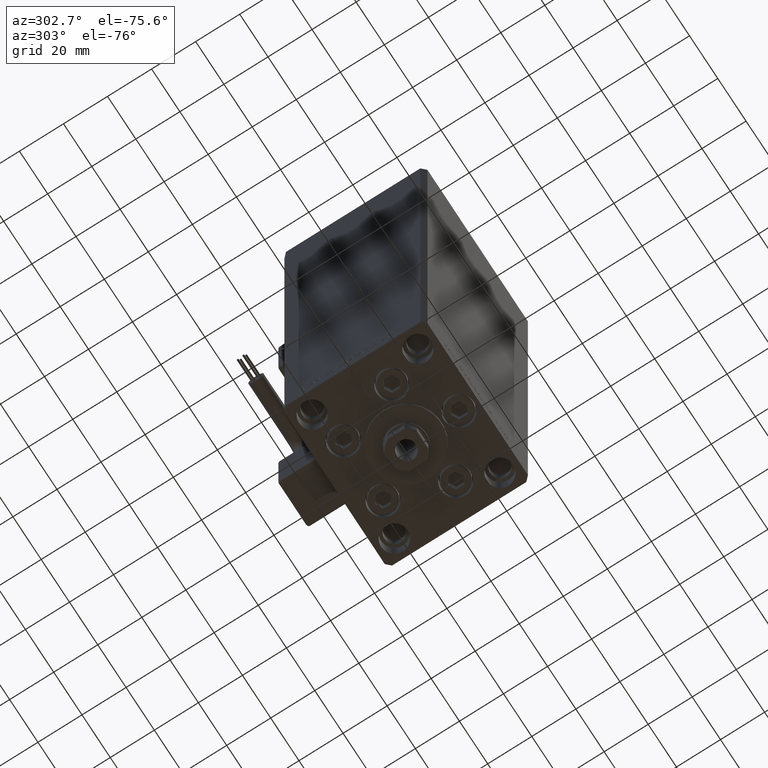
[diagram: clean part render]
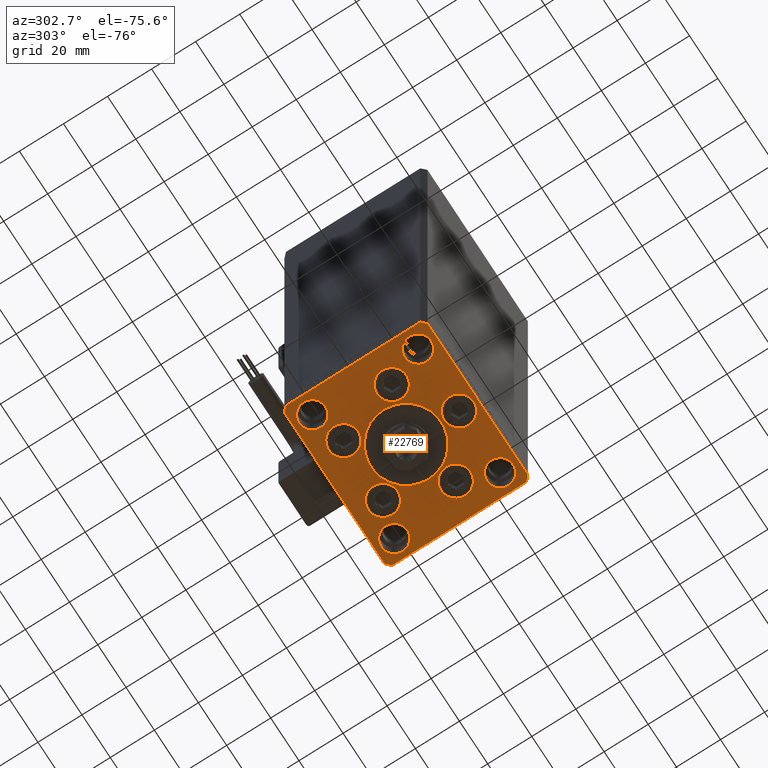
[diagram: same view with one face highlighted and labeled with its STEP entity id]
A machine part, auxiliary view. The second image highlights one B-rep face of the part: STEP entity #22769.
In plain terms, the highlighted planar face has unit normal (0, 0, -1).
Its self-contained STEP definition (entity closure, byte-faithful):
#14 = AXIS2_PLACEMENT_3D ( 'NONE', #28162, #40494, #8681 ) ;
#486 = CARTESIAN_POINT ( 'NONE',  ( -35.50000000000000711, 32.49999999999997868, 0.000000000000000000 ) ) ;
#595 = EDGE_CURVE ( 'NONE', #36400, #5822, #8258, .T. ) ;
#996 = CARTESIAN_POINT ( 'NONE',  ( 35.50000000000001421, -32.49999999999992184, 0.000000000000000000 ) ) ;
#1094 = DIRECTION ( 'NONE',  ( 1.000000000000000000, 0.000000000000000000, 0.000000000000000000 ) ) ;
#1117 = CIRCLE ( 'NONE', #43922, 6.750000000001552536 ) ;
#1350 = CARTESIAN_POINT ( 'NONE',  ( -22.62741699796953299, -8.000000000000000000, 0.000000000000000000 ) ) ;
#1377 = EDGE_LOOP ( 'NONE', ( #46685, #33184 ) ) ;
#1691 = ORIENTED_EDGE ( 'NONE', *, *, #20599, .T. ) ;
#1692 = CIRCLE ( 'NONE', #14, 6.000000000000001776 ) ;
#2246 = DIRECTION ( 'NONE',  ( 1.000000000000000000, 0.000000000000000000, 0.000000000000000000 ) ) ;
#2519 = VERTEX_POINT ( 'NONE', #40950 ) ;
#2531 = VERTEX_POINT ( 'NONE', #43015 ) ;
#2595 = ORIENTED_EDGE ( 'NONE', *, *, #49307, .F. ) ;
#2691 = CIRCLE ( 'NONE', #44649, 6.750000000000009770 ) ;
#2895 = EDGE_CURVE ( 'NONE', #34607, #11004, #32704, .T. ) ;
#3568 = DIRECTION ( 'NONE',  ( 0.000000000000000000, 0.000000000000000000, 1.000000000000000000 ) ) ;
#3669 = CARTESIAN_POINT ( 'NONE',  ( -22.62741699796953299, -8.000000000000000000, 0.000000000000000000 ) ) ;
#3739 = CIRCLE ( 'NONE', #16339, 6.750000000000000000 ) ;
#3889 = ORIENTED_EDGE ( 'NONE', *, *, #48195, .F. ) ;
#4486 = EDGE_CURVE ( 'NONE', #34597, #2519, #1692, .T. ) ;
#4515 = DIRECTION ( 'NONE',  ( 0.000000000000000000, 0.000000000000000000, 1.000000000000000000 ) ) ;
#5458 = CARTESIAN_POINT ( 'NONE',  ( -20.74106857963324302, 19.50000000000000000, 0.000000000000000000 ) ) ;
#5578 = DIRECTION ( 'NONE',  ( 1.000000000000000000, 0.000000000000000000, 0.000000000000000000 ) ) ;
#5822 = VERTEX_POINT ( 'NONE', #26227 ) ;
#6028 = DIRECTION ( 'NONE',  ( 0.000000000000000000, 0.000000000000000000, 1.000000000000000000 ) ) ;
#6093 = CIRCLE ( 'NONE', #29601, 6.000000000000001776 ) ;
#6151 = DIRECTION ( 'NONE',  ( 1.000000000000000000, 0.000000000000000000, 0.000000000000000000 ) ) ;
#6156 = ORIENTED_EDGE ( 'NONE', *, *, #595, .F. ) ;
#6289 = DIRECTION ( 'NONE',  ( 1.000000000000000000, 0.000000000000000000, 0.000000000000000000 ) ) ;
#6846 = VERTEX_POINT ( 'NONE', #11284 ) ;
#7056 = ORIENTED_EDGE ( 'NONE', *, *, #27213, .F. ) ;
#7059 = VERTEX_POINT ( 'NONE', #46445 ) ;
#7360 = DIRECTION ( 'NONE',  ( 1.000000000000000000, 0.000000000000000000, 0.000000000000000000 ) ) ;
#7904 = EDGE_CURVE ( 'NONE', #41837, #30245, #19239, .T. ) ;
#7935 = CARTESIAN_POINT ( 'NONE',  ( 29.00000000000000000, 24.00000000000000355, 0.000000000000000000 ) ) ;
#8258 = CIRCLE ( 'NONE', #28423, 6.749999999999999112 ) ;
#8498 = CARTESIAN_POINT ( 'NONE',  ( 0.000000000000000000, -24.00000000000001066, 0.000000000000000000 ) ) ;
#8649 = CIRCLE ( 'NONE', #21259, 5.999999999999998224 ) ;
#8681 = DIRECTION ( 'NONE',  ( 1.000000000000000000, 0.000000000000000000, 0.000000000000000000 ) ) ;
#8711 = DIRECTION ( 'NONE',  ( 1.000000000000000000, 0.000000000000000000, 0.000000000000000000 ) ) ;
#9003 = CARTESIAN_POINT ( 'NONE',  ( -13.99106857963324124, 19.50000000000000000, 0.000000000000000000 ) ) ;
#9019 = CIRCLE ( 'NONE', #38396, 6.000000000000001776 ) ;
#9165 = DIRECTION ( 'NONE',  ( -0.7071067811865524577, -0.7071067811865426878, 0.000000000000000000 ) ) ;
#9219 = CIRCLE ( 'NONE', #23493, 6.749999999999997335 ) ;
#9330 = FACE_OUTER_BOUND ( 'NONE', #43827, .T. ) ;
#9437 = CARTESIAN_POINT ( 'NONE',  ( -7.241068579633241242, 19.50000000000000000, 0.000000000000000000 ) ) ;
#9586 = DIRECTION ( 'NONE',  ( 1.000000000000000000, 0.000000000000000000, 0.000000000000000000 ) ) ;
#9828 = AXIS2_PLACEMENT_3D ( 'NONE', #10005, #50715, #34462 ) ;
#9878 = CARTESIAN_POINT ( 'NONE',  ( 37.50000000000000711, -30.49999999999992895, 0.000000000000000000 ) ) ;
#10005 = CARTESIAN_POINT ( 'NONE',  ( -29.00000000000000000, -23.99999999999999645, 0.000000000000000000 ) ) ;
#10339 = ORIENTED_EDGE ( 'NONE', *, *, #19787, .F. ) ;
#10352 = ORIENTED_EDGE ( 'NONE', *, *, #12501, .F. ) ;
#10353 = VERTEX_POINT ( 'NONE', #486 ) ;
#10628 = CARTESIAN_POINT ( 'NONE',  ( 15.87741699796952410, -8.000000000000000000, 0.000000000000000000 ) ) ;
#10654 = DIRECTION ( 'NONE',  ( 1.000000000000000000, 0.000000000000000000, 0.000000000000000000 ) ) ;
#10742 = CIRCLE ( 'NONE', #40126, 6.000000000000001776 ) ;
#10786 = ORIENTED_EDGE ( 'NONE', *, *, #24116, .T. ) ;
#10999 = EDGE_LOOP ( 'NONE', ( #6156, #24991 ) ) ;
#11004 = VERTEX_POINT ( 'NONE', #42838 ) ;
#11022 = AXIS2_PLACEMENT_3D ( 'NONE', #39307, #3568, #47446 ) ;
#11284 = CARTESIAN_POINT ( 'NONE',  ( 23.00000000000000000, 24.00000000000000355, 0.000000000000000000 ) ) ;
#11535 = CIRCLE ( 'NONE', #9828, 6.000000000000001776 ) ;
#11778 = CARTESIAN_POINT ( 'NONE',  ( 16.00000000000000355, -4.979459025271462852E-15, 0.000000000000000000 ) ) ;
#12261 = CARTESIAN_POINT ( 'NONE',  ( -37.50000000000001421, 30.50000000000000000, 0.000000000000000000 ) ) ;
#12422 = EDGE_LOOP ( 'NONE', ( #42690, #10339 ) ) ;
#12501 = EDGE_CURVE ( 'NONE', #29444, #42003, #9219, .T. ) ;
#12957 = CARTESIAN_POINT ( 'NONE',  ( 13.99106857963324124, 19.50000000000000000, 0.000000000000000000 ) ) ;
#13016 = ORIENTED_EDGE ( 'NONE', *, *, #15772, .F. ) ;
#13181 = ORIENTED_EDGE ( 'NONE', *, *, #7904, .T. ) ;
#13364 = LINE ( 'NONE', #21002, #44752 ) ;
#13506 = LINE ( 'NONE', #40860, #48229 ) ;
#13532 = PLANE ( 'NONE',  #37989 ) ;
#13890 = AXIS2_PLACEMENT_3D ( 'NONE', #37279, #20984, #44645 ) ;
#13912 = CARTESIAN_POINT ( 'NONE',  ( 0.000000000000000000, -6.938893903907228378E-15, 0.000000000000000000 ) ) ;
#14256 = CARTESIAN_POINT ( 'NONE',  ( -16.00000000000000355, -6.938893903907228378E-15, 0.000000000000000000 ) ) ;
#14378 = CARTESIAN_POINT ( 'NONE',  ( -13.99106857963324124, 19.50000000000000000, 0.000000000000000000 ) ) ;
#14400 = LINE ( 'NONE', #46970, #26587 ) ;
#14434 = AXIS2_PLACEMENT_3D ( 'NONE', #14378, #50360, #50870 ) ;
#14939 = DIRECTION ( 'NONE',  ( -1.000000000000000000, -1.954618001100627573E-16, 0.000000000000000000 ) ) ;
#15437 = DIRECTION ( 'NONE',  ( -0.7071067811865524577, 0.7071067811865426878, 0.000000000000000000 ) ) ;
#15478 = VERTEX_POINT ( 'NONE', #11778 ) ;
#15772 = EDGE_CURVE ( 'NONE', #2519, #34597, #22812, .T. ) ;
#15880 = CARTESIAN_POINT ( 'NONE',  ( -37.50000000000000000, -30.50000000000004263, 0.000000000000000000 ) ) ;
#16339 = AXIS2_PLACEMENT_3D ( 'NONE', #9003, #32942, #45270 ) ;
#16491 = CIRCLE ( 'NONE', #46726, 6.750000000001552536 ) ;
#16603 = AXIS2_PLACEMENT_3D ( 'NONE', #13912, #6028, #6289 ) ;
#16752 = AXIS2_PLACEMENT_3D ( 'NONE', #22453, #42164, #6151 ) ;
#17222 = DIRECTION ( 'NONE',  ( -0.000000000000000000, 0.000000000000000000, 1.000000000000000000 ) ) ;
#17393 = EDGE_CURVE ( 'NONE', #38232, #40409, #51318, .T. ) ;
#17465 = EDGE_CURVE ( 'NONE', #11004, #34607, #2691, .T. ) ;
#17478 = FACE_BOUND ( 'NONE', #20715, .T. ) ;
#17610 = DIRECTION ( 'NONE',  ( 0.7071067811865463515, 0.7071067811865487940, 0.000000000000000000 ) ) ;
#17735 = FACE_BOUND ( 'NONE', #47521, .T. ) ;
#18122 = EDGE_LOOP ( 'NONE', ( #10352, #26382 ) ) ;
#19001 = CIRCLE ( 'NONE', #35790, 6.749999999999999112 ) ;
#19239 = LINE ( 'NONE', #34505, #51108 ) ;
#19260 = ORIENTED_EDGE ( 'NONE', *, *, #45308, .F. ) ;
#19455 = DIRECTION ( 'NONE',  ( 0.000000000000000000, 0.000000000000000000, 1.000000000000000000 ) ) ;
#19501 = DIRECTION ( 'NONE',  ( 0.000000000000000000, 0.000000000000000000, 1.000000000000000000 ) ) ;
#19787 = EDGE_CURVE ( 'NONE', #50903, #35706, #8649, .T. ) ;
#20139 = EDGE_CURVE ( 'NONE', #7059, #23876, #1117, .T. ) ;
#20211 = DIRECTION ( 'NONE',  ( 0.000000000000000000, 0.000000000000000000, 1.000000000000000000 ) ) ;
#20395 = LINE ( 'NONE', #12261, #39225 ) ;
#20435 = EDGE_LOOP ( 'NONE', ( #38803, #7056 ) ) ;
#20599 = EDGE_CURVE ( 'NONE', #2531, #10353, #43578, .T. ) ;
#20715 = EDGE_LOOP ( 'NONE', ( #30855, #19260 ) ) ;
#20933 = VERTEX_POINT ( 'NONE', #50855 ) ;
#20984 = DIRECTION ( 'NONE',  ( 0.000000000000000000, 0.000000000000000000, 1.000000000000000000 ) ) ;
#21002 = CARTESIAN_POINT ( 'NONE',  ( -35.50000000000000711, 32.49999999999997868, 0.000000000000000000 ) ) ;
#21056 = CARTESIAN_POINT ( 'NONE',  ( -6.750000000001552536, -24.00000000000001066, 0.000000000000000000 ) ) ;
#21259 = AXIS2_PLACEMENT_3D ( 'NONE', #25091, #37935, #49741 ) ;
#21418 = FACE_BOUND ( 'NONE', #20435, .T. ) ;
#21844 = EDGE_LOOP ( 'NONE', ( #23545, #26061 ) ) ;
#22082 = VECTOR ( 'NONE', #14939, 1000.000000000000000 ) ;
#22289 = CARTESIAN_POINT ( 'NONE',  ( 37.50000000000000711, 30.50000000000001421, 0.000000000000000000 ) ) ;
#22453 = CARTESIAN_POINT ( 'NONE',  ( 22.62741699796953299, -8.000000000000000000, 0.000000000000000000 ) ) ;
#22636 = EDGE_LOOP ( 'NONE', ( #30843, #13016 ) ) ;
#22769 = ADVANCED_FACE ( 'NONE', ( #33778, #21418, #50028, #26150, #17478, #26412, #17735, #49775, #45592, #38225, #9330 ), #13532, .T. ) ;
#22812 = CIRCLE ( 'NONE', #11022, 6.000000000000001776 ) ;
#23039 = VERTEX_POINT ( 'NONE', #14256 ) ;
#23193 = CARTESIAN_POINT ( 'NONE',  ( 0.000000000000000000, -6.938893903907228378E-15, 0.000000000000000000 ) ) ;
#23493 = AXIS2_PLACEMENT_3D ( 'NONE', #41678, #26440, #10654 ) ;
#23545 = ORIENTED_EDGE ( 'NONE', *, *, #17465, .F. ) ;
#23876 = VERTEX_POINT ( 'NONE', #21056 ) ;
#24038 = ORIENTED_EDGE ( 'NONE', *, *, #48024, .F. ) ;
#24116 = EDGE_CURVE ( 'NONE', #10353, #30315, #13364, .T. ) ;
#24549 = DIRECTION ( 'NONE',  ( 0.000000000000000000, 0.000000000000000000, 1.000000000000000000 ) ) ;
#24991 = ORIENTED_EDGE ( 'NONE', *, *, #41784, .F. ) ;
#25091 = CARTESIAN_POINT ( 'NONE',  ( 29.00000000000000355, -23.99999999999999645, 0.000000000000000000 ) ) ;
#26014 = CARTESIAN_POINT ( 'NONE',  ( -23.00000000000000000, -23.99999999999999645, 0.000000000000000000 ) ) ;
#26061 = ORIENTED_EDGE ( 'NONE', *, *, #2895, .F. ) ;
#26075 = ORIENTED_EDGE ( 'NONE', *, *, #31712, .T. ) ;
#26116 = CARTESIAN_POINT ( 'NONE',  ( 22.62741699796953299, -8.000000000000000000, 0.000000000000000000 ) ) ;
#26150 = FACE_BOUND ( 'NONE', #21844, .T. ) ;
#26227 = CARTESIAN_POINT ( 'NONE',  ( -29.37741699796953654, -8.000000000000000000, 0.000000000000000000 ) ) ;
#26282 = CARTESIAN_POINT ( 'NONE',  ( 35.50000000000001421, -32.49999999999992184, 0.000000000000000000 ) ) ;
#26334 = AXIS2_PLACEMENT_3D ( 'NONE', #23193, #19501, #2246 ) ;
#26382 = ORIENTED_EDGE ( 'NONE', *, *, #27210, .F. ) ;
#26401 = CIRCLE ( 'NONE', #43171, 6.749999999999997335 ) ;
#26412 = FACE_BOUND ( 'NONE', #10999, .T. ) ;
#26440 = DIRECTION ( 'NONE',  ( 0.000000000000000000, 0.000000000000000000, 1.000000000000000000 ) ) ;
#26520 = CIRCLE ( 'NONE', #13890, 5.999999999999998224 ) ;
#26587 = VECTOR ( 'NONE', #27018, 1000.000000000000000 ) ;
#26938 = CARTESIAN_POINT ( 'NONE',  ( -23.00000000000000000, 24.00000000000000711, 0.000000000000000000 ) ) ;
#27018 = DIRECTION ( 'NONE',  ( 0.7071067811865512365, -0.7071067811865439090, 0.000000000000000000 ) ) ;
#27210 = EDGE_CURVE ( 'NONE', #42003, #29444, #26401, .T. ) ;
#27213 = EDGE_CURVE ( 'NONE', #40409, #38232, #3739, .T. ) ;
#27393 = VERTEX_POINT ( 'NONE', #26014 ) ;
#28162 = CARTESIAN_POINT ( 'NONE',  ( -29.00000000000000000, 24.00000000000000711, 0.000000000000000000 ) ) ;
#28423 = AXIS2_PLACEMENT_3D ( 'NONE', #3669, #20211, #47807 ) ;
#28471 = DIRECTION ( 'NONE',  ( 1.000000000000000000, 0.000000000000000000, 0.000000000000000000 ) ) ;
#28711 = DIRECTION ( 'NONE',  ( 0.000000000000000000, 0.000000000000000000, 1.000000000000000000 ) ) ;
#28730 = DIRECTION ( 'NONE',  ( 0.000000000000000000, 0.000000000000000000, 1.000000000000000000 ) ) ;
#29223 = CARTESIAN_POINT ( 'NONE',  ( 0.000000000000000000, -24.00000000000001066, 0.000000000000000000 ) ) ;
#29296 = VERTEX_POINT ( 'NONE', #9878 ) ;
#29444 = VERTEX_POINT ( 'NONE', #50851 ) ;
#29601 = AXIS2_PLACEMENT_3D ( 'NONE', #7935, #4515, #8711 ) ;
#30245 = VERTEX_POINT ( 'NONE', #996 ) ;
#30315 = VERTEX_POINT ( 'NONE', #36222 ) ;
#30546 = DIRECTION ( 'NONE',  ( 0.000000000000000000, 0.000000000000000000, 1.000000000000000000 ) ) ;
#30843 = ORIENTED_EDGE ( 'NONE', *, *, #4486, .F. ) ;
#30855 = ORIENTED_EDGE ( 'NONE', *, *, #20139, .F. ) ;
#31253 = ORIENTED_EDGE ( 'NONE', *, *, #43127, .T. ) ;
#31361 = CIRCLE ( 'NONE', #26334, 16.00000000000000355 ) ;
#31712 = EDGE_CURVE ( 'NONE', #30245, #29296, #45983, .T. ) ;
#32704 = CIRCLE ( 'NONE', #16752, 6.750000000000009770 ) ;
#32942 = DIRECTION ( 'NONE',  ( 0.000000000000000000, 0.000000000000000000, 1.000000000000000000 ) ) ;
#33103 = CARTESIAN_POINT ( 'NONE',  ( -15.87741699796953476, -8.000000000000000000, 0.000000000000000000 ) ) ;
#33184 = ORIENTED_EDGE ( 'NONE', *, *, #44872, .F. ) ;
#33416 = DIRECTION ( 'NONE',  ( 0.000000000000000000, 0.000000000000000000, 1.000000000000000000 ) ) ;
#33614 = EDGE_CURVE ( 'NONE', #6846, #46621, #6093, .T. ) ;
#33778 = FACE_BOUND ( 'NONE', #1377, .T. ) ;
#33942 = DIRECTION ( 'NONE',  ( 1.000000000000000000, 0.000000000000000000, 0.000000000000000000 ) ) ;
#34462 = DIRECTION ( 'NONE',  ( 1.000000000000000000, 0.000000000000000000, 0.000000000000000000 ) ) ;
#34505 = CARTESIAN_POINT ( 'NONE',  ( -35.50000000000001421, -32.50000000000000711, 0.000000000000000000 ) ) ;
#34597 = VERTEX_POINT ( 'NONE', #26938 ) ;
#34607 = VERTEX_POINT ( 'NONE', #10628 ) ;
#34637 = CARTESIAN_POINT ( 'NONE',  ( 23.00000000000000711, -23.99999999999999645, 0.000000000000000000 ) ) ;
#34892 = LINE ( 'NONE', #22289, #40843 ) ;
#35232 = CARTESIAN_POINT ( 'NONE',  ( -29.00000000000000000, -23.99999999999999645, 0.000000000000000000 ) ) ;
#35706 = VERTEX_POINT ( 'NONE', #48262 ) ;
#35790 = AXIS2_PLACEMENT_3D ( 'NONE', #1350, #33416, #1094 ) ;
#35817 = VECTOR ( 'NONE', #17610, 1000.000000000000000 ) ;
#35974 = EDGE_CURVE ( 'NONE', #23039, #15478, #31361, .T. ) ;
#36089 = CARTESIAN_POINT ( 'NONE',  ( 37.50000000000000711, 30.50000000000001421, 0.000000000000000000 ) ) ;
#36222 = CARTESIAN_POINT ( 'NONE',  ( -37.50000000000001421, 30.50000000000000000, 0.000000000000000000 ) ) ;
#36400 = VERTEX_POINT ( 'NONE', #33103 ) ;
#37239 = CARTESIAN_POINT ( 'NONE',  ( 7.241068579633242130, 19.50000000000000000, 0.000000000000000000 ) ) ;
#37279 = CARTESIAN_POINT ( 'NONE',  ( 29.00000000000000355, -23.99999999999999645, 0.000000000000000000 ) ) ;
#37504 = EDGE_CURVE ( 'NONE', #29296, #37801, #13506, .T. ) ;
#37801 = VERTEX_POINT ( 'NONE', #36089 ) ;
#37935 = DIRECTION ( 'NONE',  ( 0.000000000000000000, 0.000000000000000000, 1.000000000000000000 ) ) ;
#37989 = AXIS2_PLACEMENT_3D ( 'NONE', #45848, #17222, #9586 ) ;
#38225 = FACE_BOUND ( 'NONE', #12422, .T. ) ;
#38232 = VERTEX_POINT ( 'NONE', #9437 ) ;
#38396 = AXIS2_PLACEMENT_3D ( 'NONE', #35232, #19455, #7360 ) ;
#38803 = ORIENTED_EDGE ( 'NONE', *, *, #17393, .F. ) ;
#39213 = DIRECTION ( 'NONE',  ( 1.000000000000000000, 1.172770800660376149E-15, 0.000000000000000000 ) ) ;
#39225 = VECTOR ( 'NONE', #44324, 1000.000000000000000 ) ;
#39307 = CARTESIAN_POINT ( 'NONE',  ( -29.00000000000000000, 24.00000000000000711, 0.000000000000000000 ) ) ;
#39376 = CARTESIAN_POINT ( 'NONE',  ( 35.50000000000000000, 32.49999999999999289, 0.000000000000000000 ) ) ;
#39706 = ORIENTED_EDGE ( 'NONE', *, *, #46220, .T. ) ;
#40057 = CARTESIAN_POINT ( 'NONE',  ( 35.00000000000000000, 24.00000000000000355, 0.000000000000000000 ) ) ;
#40126 = AXIS2_PLACEMENT_3D ( 'NONE', #50491, #30546, #5578 ) ;
#40409 = VERTEX_POINT ( 'NONE', #5458 ) ;
#40454 = EDGE_CURVE ( 'NONE', #35706, #50903, #26520, .T. ) ;
#40494 = DIRECTION ( 'NONE',  ( 0.000000000000000000, 0.000000000000000000, 1.000000000000000000 ) ) ;
#40566 = DIRECTION ( 'NONE',  ( 1.000000000000000000, 0.000000000000000000, 0.000000000000000000 ) ) ;
#40662 = DIRECTION ( 'NONE',  ( 0.000000000000000000, 0.000000000000000000, 1.000000000000000000 ) ) ;
#40717 = VERTEX_POINT ( 'NONE', #15880 ) ;
#40843 = VECTOR ( 'NONE', #15437, 1000.000000000000000 ) ;
#40860 = CARTESIAN_POINT ( 'NONE',  ( 37.50000000000000711, -30.49999999999992895, 0.000000000000000000 ) ) ;
#40950 = CARTESIAN_POINT ( 'NONE',  ( -35.00000000000000000, 24.00000000000000711, 0.000000000000000000 ) ) ;
#41678 = CARTESIAN_POINT ( 'NONE',  ( 13.99106857963324124, 19.50000000000000000, 0.000000000000000000 ) ) ;
#41784 = EDGE_CURVE ( 'NONE', #5822, #36400, #19001, .T. ) ;
#41811 = ORIENTED_EDGE ( 'NONE', *, *, #37504, .T. ) ;
#41837 = VERTEX_POINT ( 'NONE', #45488 ) ;
#42003 = VERTEX_POINT ( 'NONE', #37239 ) ;
#42164 = DIRECTION ( 'NONE',  ( 0.000000000000000000, 0.000000000000000000, 1.000000000000000000 ) ) ;
#42690 = ORIENTED_EDGE ( 'NONE', *, *, #40454, .F. ) ;
#42838 = CARTESIAN_POINT ( 'NONE',  ( 29.37741699796954364, -8.000000000000000000, 0.000000000000000000 ) ) ;
#43015 = CARTESIAN_POINT ( 'NONE',  ( 35.50000000000000000, 32.49999999999999289, 0.000000000000000000 ) ) ;
#43127 = EDGE_CURVE ( 'NONE', #30315, #40717, #20395, .T. ) ;
#43171 = AXIS2_PLACEMENT_3D ( 'NONE', #12957, #28730, #28471 ) ;
#43578 = LINE ( 'NONE', #39376, #22082 ) ;
#43827 = EDGE_LOOP ( 'NONE', ( #50467, #13181, #26075, #41811, #39706, #1691, #10786, #31253 ) ) ;
#43922 = AXIS2_PLACEMENT_3D ( 'NONE', #29223, #28711, #33942 ) ;
#44324 = DIRECTION ( 'NONE',  ( 2.275047181608926165E-16, -1.000000000000000000, 0.000000000000000000 ) ) ;
#44645 = DIRECTION ( 'NONE',  ( 1.000000000000000000, 0.000000000000000000, 0.000000000000000000 ) ) ;
#44649 = AXIS2_PLACEMENT_3D ( 'NONE', #26116, #40662, #49995 ) ;
#44752 = VECTOR ( 'NONE', #9165, 1000.000000000000000 ) ;
#44872 = EDGE_CURVE ( 'NONE', #15478, #23039, #46798, .T. ) ;
#45270 = DIRECTION ( 'NONE',  ( 1.000000000000000000, 0.000000000000000000, 0.000000000000000000 ) ) ;
#45308 = EDGE_CURVE ( 'NONE', #23876, #7059, #16491, .T. ) ;
#45488 = CARTESIAN_POINT ( 'NONE',  ( -35.50000000000001421, -32.50000000000000711, 0.000000000000000000 ) ) ;
#45592 = FACE_BOUND ( 'NONE', #47525, .T. ) ;
#45848 = CARTESIAN_POINT ( 'NONE',  ( 0.000000000000000000, 0.000000000000000000, 0.000000000000000000 ) ) ;
#45983 = LINE ( 'NONE', #26282, #35817 ) ;
#46220 = EDGE_CURVE ( 'NONE', #37801, #2531, #34892, .T. ) ;
#46222 = EDGE_CURVE ( 'NONE', #40717, #41837, #14400, .T. ) ;
#46445 = CARTESIAN_POINT ( 'NONE',  ( 6.750000000001552536, -24.00000000000001066, 0.000000000000000000 ) ) ;
#46621 = VERTEX_POINT ( 'NONE', #40057 ) ;
#46685 = ORIENTED_EDGE ( 'NONE', *, *, #35974, .F. ) ;
#46726 = AXIS2_PLACEMENT_3D ( 'NONE', #8498, #24549, #40566 ) ;
#46798 = CIRCLE ( 'NONE', #16603, 16.00000000000000355 ) ;
#46970 = CARTESIAN_POINT ( 'NONE',  ( -37.50000000000000000, -30.50000000000004263, 0.000000000000000000 ) ) ;
#47446 = DIRECTION ( 'NONE',  ( 1.000000000000000000, 0.000000000000000000, 0.000000000000000000 ) ) ;
#47521 = EDGE_LOOP ( 'NONE', ( #2595, #48761 ) ) ;
#47525 = EDGE_LOOP ( 'NONE', ( #24038, #3889 ) ) ;
#47807 = DIRECTION ( 'NONE',  ( 1.000000000000000000, 0.000000000000000000, 0.000000000000000000 ) ) ;
#48024 = EDGE_CURVE ( 'NONE', #27393, #20933, #11535, .T. ) ;
#48195 = EDGE_CURVE ( 'NONE', #20933, #27393, #9019, .T. ) ;
#48229 = VECTOR ( 'NONE', #49500, 1000.000000000000000 ) ;
#48262 = CARTESIAN_POINT ( 'NONE',  ( 35.00000000000000000, -23.99999999999999645, 0.000000000000000000 ) ) ;
#48761 = ORIENTED_EDGE ( 'NONE', *, *, #33614, .F. ) ;
#49307 = EDGE_CURVE ( 'NONE', #46621, #6846, #10742, .T. ) ;
#49500 = DIRECTION ( 'NONE',  ( 0.000000000000000000, 1.000000000000000000, 0.000000000000000000 ) ) ;
#49741 = DIRECTION ( 'NONE',  ( 1.000000000000000000, 0.000000000000000000, 0.000000000000000000 ) ) ;
#49775 = FACE_BOUND ( 'NONE', #22636, .T. ) ;
#49995 = DIRECTION ( 'NONE',  ( 1.000000000000000000, 0.000000000000000000, 0.000000000000000000 ) ) ;
#50028 = FACE_BOUND ( 'NONE', #18122, .T. ) ;
#50360 = DIRECTION ( 'NONE',  ( 0.000000000000000000, 0.000000000000000000, 1.000000000000000000 ) ) ;
#50467 = ORIENTED_EDGE ( 'NONE', *, *, #46222, .T. ) ;
#50491 = CARTESIAN_POINT ( 'NONE',  ( 29.00000000000000000, 24.00000000000000355, 0.000000000000000000 ) ) ;
#50715 = DIRECTION ( 'NONE',  ( 0.000000000000000000, 0.000000000000000000, 1.000000000000000000 ) ) ;
#50851 = CARTESIAN_POINT ( 'NONE',  ( 20.74106857963323947, 19.50000000000000000, 0.000000000000000000 ) ) ;
#50855 = CARTESIAN_POINT ( 'NONE',  ( -35.00000000000000000, -23.99999999999999645, 0.000000000000000000 ) ) ;
#50870 = DIRECTION ( 'NONE',  ( 1.000000000000000000, 0.000000000000000000, 0.000000000000000000 ) ) ;
#50903 = VERTEX_POINT ( 'NONE', #34637 ) ;
#51108 = VECTOR ( 'NONE', #39213, 1000.000000000000000 ) ;
#51318 = CIRCLE ( 'NONE', #14434, 6.750000000000000000 ) ;